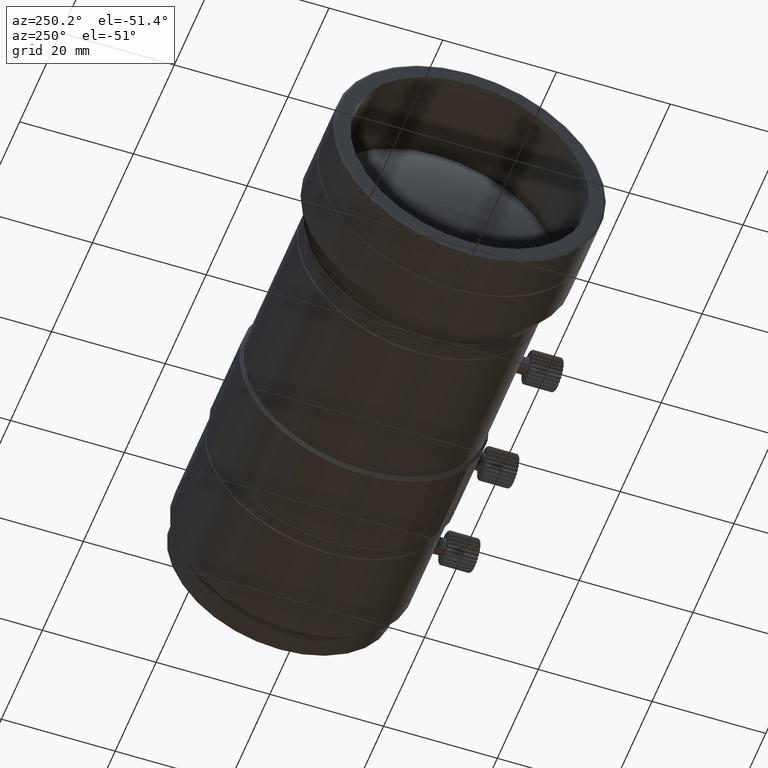
[diagram: clean part render]
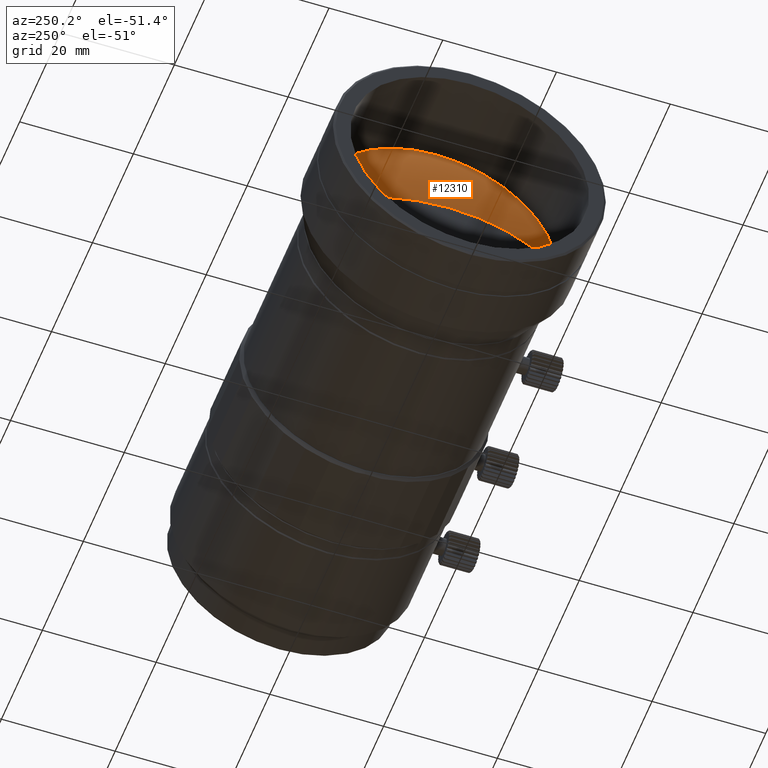
[diagram: same view with one face highlighted and labeled with its STEP entity id]
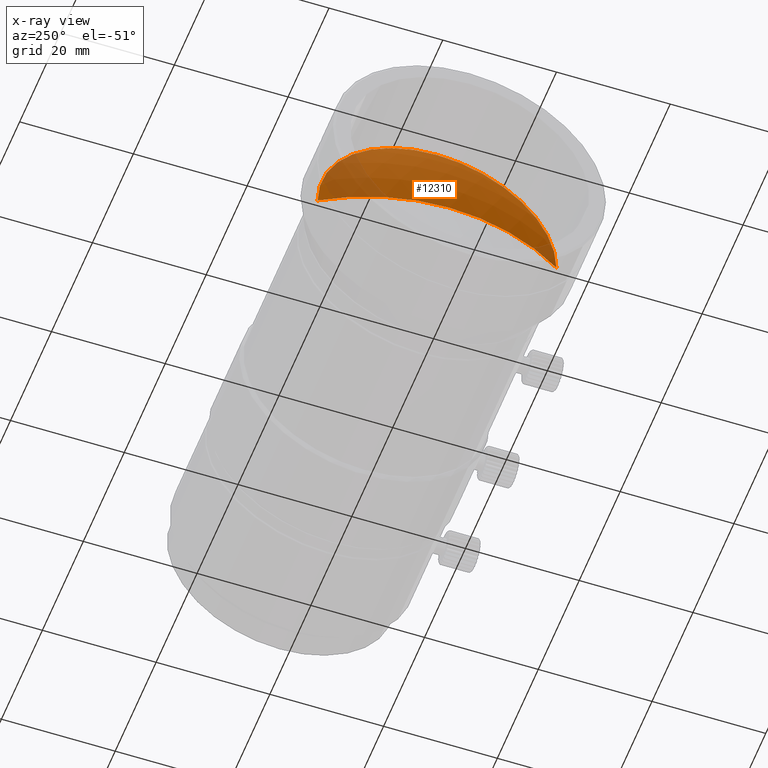
[diagram: x-ray of the same camera — body ghosted, the highlighted face saturated]
A machine part, auxiliary view. The second image highlights one B-rep face of the part: STEP entity #12310.
The next image is the same camera in x-ray: the body ghosted, the highlighted face saturated — about 19% of this face is hidden behind the body in this view.
In plain terms, the highlighted spherical surface has radius 40 mm.
Its self-contained STEP definition (entity closure, byte-faithful):
#257 = CARTESIAN_POINT ( 'NONE',  ( -47.58591093890157708, -6.938893903907228378E-15, 0.000000000000000000 ) ) ;
#401 = DIRECTION ( 'NONE',  ( 0.000000000000000000, 1.000000000000000000, 0.000000000000000000 ) ) ;
#770 = CARTESIAN_POINT ( 'NONE',  ( -47.58591093890157708, -6.938893903907228378E-15, 0.000000000000000000 ) ) ;
#810 = DIRECTION ( 'NONE',  ( 0.000000000000000000, -1.000000000000000000, 1.224646799147353207E-16 ) ) ;
#896 = VERTEX_POINT ( 'NONE', #1494 ) ;
#1494 = CARTESIAN_POINT ( 'NONE',  ( -81.62999999999999545, 0.000000000000000000, 20.99999999999998579 ) ) ;
#1732 = EDGE_LOOP ( 'NONE', ( #3428, #10873, #10472, #9794 ) ) ;
#3428 = ORIENTED_EDGE ( 'NONE', *, *, #10218, .F. ) ;
#4189 = VERTEX_POINT ( 'NONE', #14803 ) ;
#4597 = CIRCLE ( 'NONE', #13460, 20.99999999999998579 ) ;
#5660 = CARTESIAN_POINT ( 'NONE',  ( -87.58591093890159129, -4.489600305612521470E-15, 0.000000000000000000 ) ) ;
#5722 = EDGE_CURVE ( 'NONE', #11061, #14944, #13384, .T. ) ;
#5765 = DIRECTION ( 'NONE',  ( -1.000000000000000000, 0.000000000000000000, 0.000000000000000000 ) ) ;
#6442 = CARTESIAN_POINT ( 'NONE',  ( -81.62999999999998124, -20.99999999999998934, 2.571758278209440083E-15 ) ) ;
#6674 = CARTESIAN_POINT ( 'NONE',  ( -81.62999999999999545, 0.000000000000000000, 0.000000000000000000 ) ) ;
#7737 = DIRECTION ( 'NONE',  ( 0.000000000000000000, 1.224646799147353207E-16, 1.000000000000000000 ) ) ;
#7745 = DIRECTION ( 'NONE',  ( 0.000000000000000000, 0.000000000000000000, 1.000000000000000000 ) ) ;
#7871 = CARTESIAN_POINT ( 'NONE',  ( -81.62999999999999545, 0.000000000000000000, 0.000000000000000000 ) ) ;
#8654 = EDGE_CURVE ( 'NONE', #896, #4189, #12568, .T. ) ;
#9794 = ORIENTED_EDGE ( 'NONE', *, *, #8654, .T. ) ;
#10218 = EDGE_CURVE ( 'NONE', #11061, #4189, #13725, .T. ) ;
#10472 = ORIENTED_EDGE ( 'NONE', *, *, #14978, .T. ) ;
#10873 = ORIENTED_EDGE ( 'NONE', *, *, #5722, .T. ) ;
#10888 = FACE_OUTER_BOUND ( 'NONE', #1732, .T. ) ;
#10958 = DIRECTION ( 'NONE',  ( 0.000000000000000000, -0.000000000000000000, 1.000000000000000000 ) ) ;
#11008 = AXIS2_PLACEMENT_3D ( 'NONE', #257, #10958, #401 ) ;
#11061 = VERTEX_POINT ( 'NONE', #5660 ) ;
#11432 = CARTESIAN_POINT ( 'NONE',  ( -47.58591093890157708, -6.938893903907228378E-15, 0.000000000000000000 ) ) ;
#11506 = AXIS2_PLACEMENT_3D ( 'NONE', #770, #12787, #5765 ) ;
#11589 = AXIS2_PLACEMENT_3D ( 'NONE', #7871, #13813, #12805 ) ;
#12118 = SPHERICAL_SURFACE ( 'NONE', #11008, 40.00000000000000711 ) ;
#12310 = ADVANCED_FACE ( 'NONE', ( #10888 ), #12118, .T. ) ;
#12568 = CIRCLE ( 'NONE', #11589, 20.99999999999998579 ) ;
#12787 = DIRECTION ( 'NONE',  ( 0.000000000000000000, 0.000000000000000000, -1.000000000000000000 ) ) ;
#12805 = DIRECTION ( 'NONE',  ( 0.000000000000000000, 0.000000000000000000, 1.000000000000000000 ) ) ;
#13384 = CIRCLE ( 'NONE', #14622, 40.00000000000000711 ) ;
#13460 = AXIS2_PLACEMENT_3D ( 'NONE', #6674, #14856, #7745 ) ;
#13725 = CIRCLE ( 'NONE', #11506, 40.00000000000000711 ) ;
#13813 = DIRECTION ( 'NONE',  ( -1.000000000000000000, -0.000000000000000000, -0.000000000000000000 ) ) ;
#14622 = AXIS2_PLACEMENT_3D ( 'NONE', #11432, #7737, #810 ) ;
#14803 = CARTESIAN_POINT ( 'NONE',  ( -81.62999999999998124, 20.99999999999998224, 0.000000000000000000 ) ) ;
#14856 = DIRECTION ( 'NONE',  ( -1.000000000000000000, -0.000000000000000000, -0.000000000000000000 ) ) ;
#14944 = VERTEX_POINT ( 'NONE', #6442 ) ;
#14978 = EDGE_CURVE ( 'NONE', #14944, #896, #4597, .T. ) ;